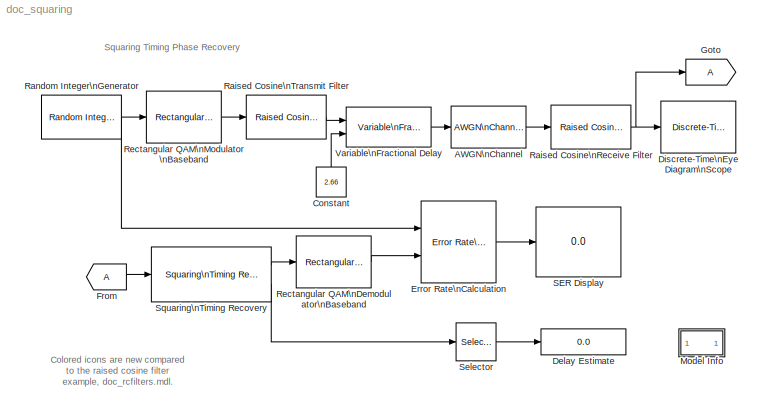
MODEL doc_squaring
KIND model
BLOCK [Reference] AWGN\nChannel  REF=commchan2/AWGN\nChannel
  EbNodB = 10
  EsNodB = 10
  Ports = [1, 1]
  Ps = 1
  SNRdB = 40
  ShowPortLabels = on
  SourceBlock = commchan2/AWGN\nChannel
  SourceType = AWGN Channel
  Tsym = 1
  bitsPerSym = 1
  noiseMode = Signal to noise ratio  (SNR)
  seed = 67
  variance = 1
BLOCK [Constant] Constant
  Value = 2.66
BLOCK [Display] Delay Estimate
  Decimation = 1
  Ports = [1]
BLOCK [Reference] Discrete-Time\nEye Diagram\nScope  REF=commsink2/Discrete-Time\nEye Diagram\nScope
  AxisGrid = on
  FigPos = [256 320 560 644]
  FrameNumber = off
  LineColors = b
  LineStyles = -
  Ports = [1]
  ShowPortLabels = on
  SourceBlock = commsink2/Discrete-Time\nEye Diagram\nScope
  SourceType = Discrete-Time Eye Diagram Scope
  Tag = EyeDiagram
  block_type_ = eye
  dispDiagram = In-phase and Quadrature
  dupPoints = on
  fading = on
  figTitle = Eye Diagram
  inphaseLabel = In-phase Amplitude
  numLinesMax = 8
  numNewFrames = 10
  numTraces = 100
  offsetEye = 0
  openScopeAtSimStart = on
  quadratureLabel = Quadrature Amplitude
  render = on
  sampPerSymb = 8
  symbPerTrace = 2
  yMax = 1.5
  yMin = -1.5
BLOCK [Reference] Error Rate\nCalculation  REF=commsink2/Error Rate\nCalculation
  N = 2*4
  PMode = Port
  Ports = [2, 1]
  RsMode2 = off
  SourceBlock = commsink2/Error Rate\nCalculation
  SourceType = Error Rate Calculation
  WsName = ErrorVec
  cp_mode = Entire frame
  maxBits = 1e6
  numErr = 100
  st_delay = 0
  stop = off
  subframe = []
BLOCK [From] From
  CloseFcn = tagdialog Close
  DialogController = Simulink.DDGSource
  GotoTag = A
BLOCK [Goto] Goto
  DialogController = Simulink.DDGSource
  GotoTag = A
  TagVisibility = local
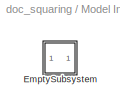
BLOCK [SubSystem] Model Info
  CopyFcn = slcm CopyBlock;
  DeleteFcn = slcm Cancel;
  EnableExecutionContextPropagation = on
  InitFcn = slcm('UpdateAllCMBlocksInThisModelInit')
  LoadFcn = slcm LoadBlock;
  MaskCallbackString = ||||||||||||||||||||||||||||||
  MaskDescription = This block allows revision control information to be displayed within the model.
  MaskDisplay = text(str2num(LeftAlignmentValue), 0.5, MaskDisplayString, 'HorizontalAlignment', HorizontalTextAlignment)\n
  MaskEnableString = on,on,on,on,on,on,on,on,on,on,on,on,on,on,on,on,on,on,on,on,on,on,on,on,on,on,on,on,on,on,on
  MaskIconFrame = on
  MaskIconOpaque = on
  MaskIconRotate = none
  MaskIconUnits = normalized
  MaskPromptString = InitialSaveTempField|InitialBlockCM|BlockCM|Frame|SaveTempField|DisplayStringWithTags|MaskDisplayString|HorizontalTextAlignment|LeftAlignmentValue|SourceBlockDiagram|TagMaxNumber|CMTag1|CMTag2|CMTag3|CMTag4|CMTag5|CMTag6|CMTag7|CMTag8|CMTag9|CMTag10|CMTag11|CMTag12|CMTag13|CMTag14|CMTag15|CMTag16|CMTag17|CMTag18|CMTag19|CMTag20
  MaskSelfModifiable = on
  MaskStyleString = edit,edit,edit,edit,edit,edit,edit,edit,edit,edit,edit,edit,edit,edit,edit,edit,edit,edit,edit,edit,edit,edit,edit,edit,edit,edit,edit,edit,edit,edit,edit
  MaskTabNameString = ,,,,,,,,,,,,,,,,,,,,,,,,,,,,,,
  MaskToolTipString = on,on,on,on,on,on,on,on,on,on,on,on,on,on,on,on,on,on,on,on,on,on,on,on,on,on,on,on,on,on,on
  MaskTunableValueString = on,on,on,on,on,on,on,on,on,on,on,on,on,on,on,on,on,on,on,on,on,on,on,on,on,on,on,on,on,on,on
  MaskType = CMBlock
  MaskValueString = |None|None|on||Info|Info|Center|0.5|doc_squaring|20||||||||||||||||||||
  MaskVarAliasString = ,,,,,,,,,,,,,,,,,,,,,,,,,,,,,,
  MaskVariables = InitialSaveTempField=&1;InitialBlockCM=&2;BlockCM=&3;Frame=&4;SaveTempField=&5;DisplayStringWithTags=&6;MaskDisplayString=&7;HorizontalTextAlignment=&8;LeftAlignmentValue=&9;SourceBlockDiagram=&10;TagMaxNumber=@11;CMTag1=&12;CMTag2=&13;CMTag3=&14;CMTag4=&15;CMTag5=&16;CMTag6=&17;CMTag7=&18;CMTag8=&19;CMTag9=&20;CMTag10=&21;CMTag11=&22;CMTag12=&23;CMTag13=&24;CMTag14=&25;CMTag15=&26;CMTag16=&27;CMT...<+45ch>
  MaskVisibilityString = off,off,off,off,off,off,off,off,off,off,off,off,off,off,off,off,off,off,off,off,off,off,off,off,off,off,off,off,off,off,off
  MinAlgLoopOccurrences = off
  NameChangeFcn = slcm Rename;
  OpenFcn = commdemohelp;
  Ports = []
  PostSaveFcn = slcm('UpdateAllCMBlocksInThisModel')
  TreatAsAtomicUnit = off
BLOCK [SubSystem] Model Info/EmptySubsystem
  EnableExecutionContextPropagation = on
  MinAlgLoopOccurrences = off
  Ports = []
  TreatAsAtomicUnit = off
BLOCK [Reference] Raised Cosine\nReceive Filter  REF=commfilt2/Raised Cosine\nReceive Filter
  D = 4
  N = 8
  Ports = [1, 1]
  R = 0.2
  ShowPortLabels = on
  SourceBlock = commfilt2/Raised Cosine\nReceive Filter
  SourceType = Raised Cosine Receive Filter
  checkCoeff = off
  checkGain = Normalized
  downFactor = 8
  downOffset = 0
  filtType = Square root
  filterGain = 1
  launchFVT = off
  rateMode = None
  sampMode = Frame-based
  variableName = rcRxFilt
BLOCK [Reference] Raised Cosine\nTransmit Filter  REF=commfilt2/Raised Cosine\nTransmit Filter
  D = 4
  N = 8
  Ports = [1, 1]
  R = 0.2
  ShowPortLabels = on
  SourceBlock = commfilt2/Raised Cosine\nTransmit Filter
  SourceType = Raised Cosine Transmit Filter
  checkCoeff = off
  checkGain = Normalized
  filtType = Square root
  filterGain = 1
  launchFVT = off
  sampMode = Frame-based
  variableName = rcTxFilt
BLOCK [Reference] Random Integer\nGenerator  REF=commrandsrc2/Random Integer\nGenerator
  Ports = [0, 1]
  ShowPortLabels = on
  SourceBlock = commrandsrc2/Random Integer\nGenerator
  SourceType = Random Integer Generator
  Ts = 1/100
  frameBased = on
  mul = 16
  orient = off
  sampPerFrame = 100
  seed = 37
BLOCK [Reference] Rectangular QAM\nDemodulator\nBaseband  REF=commdigbbndam2/Rectangular QAM\nDemodulator\nBaseband
  AvgPow = 1
  Dec = Binary
  M = 16
  MinDist = 2
  OutType = Integer
  PeakPow = 1
  Ph = 0
  Ports = [1, 1]
  PowType = Peak Power
  SourceBlock = commdigbbndam2/Rectangular QAM\nDemodulator\nBaseband
  SourceType = Rectangular QAM Demodulator Baseband
  numSamp = 1
BLOCK [Reference] Rectangular QAM\nModulator\nBaseband  REF=commdigbbndam2/Rectangular QAM\nModulator\nBaseband
  AvgPow = 1
  Enc = Binary
  InType = Integer
  M = 16
  MinDist = 2
  PeakPow = 1
  Ph = 0
  Ports = [1, 1]
  PowType = Peak Power
  SourceBlock = commdigbbndam2/Rectangular QAM\nModulator\nBaseband
  SourceType = Rectangular QAM Modulator Baseband
  numSamp = 1
BLOCK [Display] SER Display
  Decimation = 1
  Ports = [1]
BLOCK [Selector] Selector
  InputPortWidth = 100
  Ports = [1, 1]
BLOCK [Reference] Squaring\nTiming Recovery  REF=commtimrec2/Squaring\nTiming Recovery
  Ports = [1, 2]
  ShowPortLabels = on
  SourceBlock = commtimrec2/Squaring\nTiming Recovery
  SourceType = Squaring Timing Recovery
  numSymb = 100
  sampPerSymb = 8
BLOCK [Reference] Variable\nFractional Delay  REF=dspsigops/Variable\nFractional Delay
  L = 4
  Ports = [2, 1]
  R = 10
  SourceBlock = dspsigops/Variable\nFractional Delay
  SourceType = Variable Fractional Delay
  alpha = 1
  dmax = 100
  ic = 0
  mode = Linear Interpolation
ANNOTATION (root): Colored icons are new compared\nto the raised cosine filter\nexample, doc_rcfilters.mdl.
ANNOTATION (root): Squaring Timing Phase Recovery
LINE AWGN\nChannel:1 -> Raised Cosine\nReceive Filter:1
LINE Constant:1 -> Variable\nFractional Delay:2
LINE Error Rate\nCalculation:1 -> SER Display:1
LINE From:1 -> Squaring\nTiming Recovery:1
NET Raised Cosine\nReceive Filter:1 -> Discrete-Time\nEye Diagram\nScope:1, Goto:1
LINE Raised Cosine\nTransmit Filter:1 -> Variable\nFractional Delay:1
NET Random Integer\nGenerator:1 -> Error Rate\nCalculation:1, Rectangular QAM\nModulator\nBaseband:1
LINE Rectangular QAM\nDemodulator\nBaseband:1 -> Error Rate\nCalculation:2
LINE Rectangular QAM\nModulator\nBaseband:1 -> Raised Cosine\nTransmit Filter:1
LINE Selector:1 -> Delay Estimate:1
LINE Squaring\nTiming Recovery:1 -> Rectangular QAM\nDemodulator\nBaseband:1
LINE Squaring\nTiming Recovery:2 -> Selector:1
LINE Variable\nFractional Delay:1 -> AWGN\nChannel:1
note: NET lines group one-source signal fan-out (src -> all destinations, sorted); 1:1 wires keep LINE
